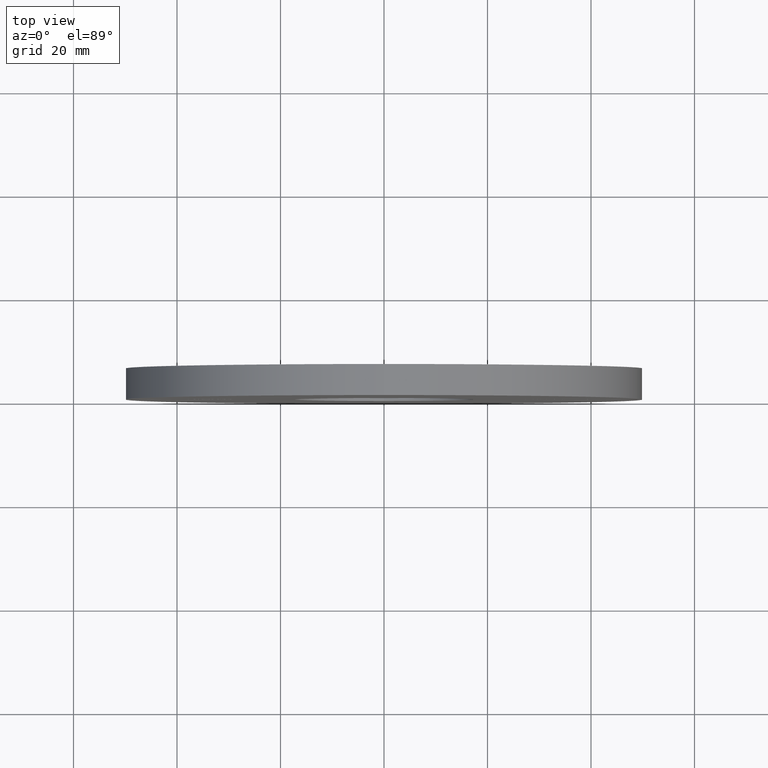
[diagram: clean part render]
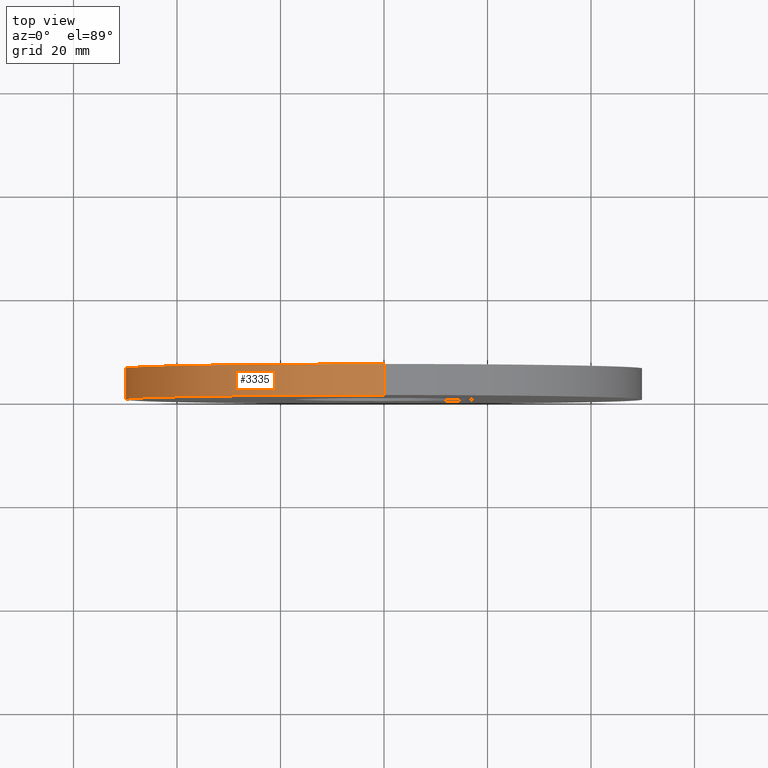
[diagram: same view with one face highlighted and labeled with its STEP entity id]
A machine part, top view. The second image highlights one B-rep face of the part: STEP entity #3335.
In plain terms, the highlighted cylindrical surface (partial cylindrical patch) has radius 50 mm, axis along (-0, -1, -0).
Its self-contained STEP definition (entity closure, byte-faithful):
#134 = ORIENTED_EDGE ( 'NONE', *, *, #2572, .T. ) ;
#389 = VERTEX_POINT ( 'NONE', #13252 ) ;
#453 = CARTESIAN_POINT ( 'NONE',  ( 6.123233995736766085E-15, 0.000000000000000000, 50.00000000000000000 ) ) ;
#879 = AXIS2_PLACEMENT_3D ( 'NONE', #10968, #3383, #5824 ) ;
#932 = ORIENTED_EDGE ( 'NONE', *, *, #15368, .F. ) ;
#1127 = DIRECTION ( 'NONE',  ( 0.000000000000000000, 0.000000000000000000, 1.000000000000000000 ) ) ;
#1154 = CYLINDRICAL_SURFACE ( 'NONE', #879, 50.00000000000000000 ) ;
#2572 = EDGE_CURVE ( 'NONE', #8193, #8677, #5923, .T. ) ;
#2718 = EDGE_LOOP ( 'NONE', ( #932, #2826, #134, #5166 ) ) ;
#2826 = ORIENTED_EDGE ( 'NONE', *, *, #12232, .F. ) ;
#3335 = ADVANCED_FACE ( 'NONE', ( #4920 ), #1154, .T. ) ;
#3383 = DIRECTION ( 'NONE',  ( -0.000000000000000000, -1.000000000000000000, -0.000000000000000000 ) ) ;
#4353 = VECTOR ( 'NONE', #8163, 1000.000000000000000 ) ;
#4881 = CARTESIAN_POINT ( 'NONE',  ( 0.000000000000000000, 0.000000000000000000, 0.000000000000000000 ) ) ;
#4920 = FACE_OUTER_BOUND ( 'NONE', #2718, .T. ) ;
#5166 = ORIENTED_EDGE ( 'NONE', *, *, #10095, .T. ) ;
#5321 = AXIS2_PLACEMENT_3D ( 'NONE', #12551, #15079, #1127 ) ;
#5824 = DIRECTION ( 'NONE',  ( 0.000000000000000000, 0.000000000000000000, -1.000000000000000000 ) ) ;
#5906 = CARTESIAN_POINT ( 'NONE',  ( 0.000000000000000000, 6.000000000000000000, -50.00000000000000000 ) ) ;
#5923 = LINE ( 'NONE', #11284, #7132 ) ;
#7132 = VECTOR ( 'NONE', #12519, 1000.000000000000000 ) ;
#7236 = CARTESIAN_POINT ( 'NONE',  ( 6.123233995736766085E-15, 6.000000000000000000, 50.00000000000000000 ) ) ;
#7344 = DIRECTION ( 'NONE',  ( 0.000000000000000000, 1.000000000000000000, 0.000000000000000000 ) ) ;
#8163 = DIRECTION ( 'NONE',  ( -0.000000000000000000, -1.000000000000000000, -0.000000000000000000 ) ) ;
#8193 = VERTEX_POINT ( 'NONE', #5906 ) ;
#8677 = VERTEX_POINT ( 'NONE', #13202 ) ;
#10095 = EDGE_CURVE ( 'NONE', #8677, #14427, #10749, .T. ) ;
#10749 = CIRCLE ( 'NONE', #15016, 50.00000000000000000 ) ;
#10968 = CARTESIAN_POINT ( 'NONE',  ( 0.000000000000000000, 6.000000000000000000, 0.000000000000000000 ) ) ;
#11284 = CARTESIAN_POINT ( 'NONE',  ( 0.000000000000000000, 6.000000000000000000, -50.00000000000000000 ) ) ;
#12232 = EDGE_CURVE ( 'NONE', #8193, #389, #13892, .T. ) ;
#12519 = DIRECTION ( 'NONE',  ( -0.000000000000000000, -1.000000000000000000, -0.000000000000000000 ) ) ;
#12551 = CARTESIAN_POINT ( 'NONE',  ( 0.000000000000000000, 6.000000000000000000, 0.000000000000000000 ) ) ;
#12891 = LINE ( 'NONE', #7236, #4353 ) ;
#13202 = CARTESIAN_POINT ( 'NONE',  ( 0.000000000000000000, 0.000000000000000000, -50.00000000000000000 ) ) ;
#13252 = CARTESIAN_POINT ( 'NONE',  ( 6.123233995736766085E-15, 6.000000000000000000, 50.00000000000000000 ) ) ;
#13748 = DIRECTION ( 'NONE',  ( 0.000000000000000000, 0.000000000000000000, 1.000000000000000000 ) ) ;
#13892 = CIRCLE ( 'NONE', #5321, 50.00000000000000000 ) ;
#14427 = VERTEX_POINT ( 'NONE', #453 ) ;
#15016 = AXIS2_PLACEMENT_3D ( 'NONE', #4881, #7344, #13748 ) ;
#15079 = DIRECTION ( 'NONE',  ( 0.000000000000000000, 1.000000000000000000, 0.000000000000000000 ) ) ;
#15368 = EDGE_CURVE ( 'NONE', #389, #14427, #12891, .T. ) ;